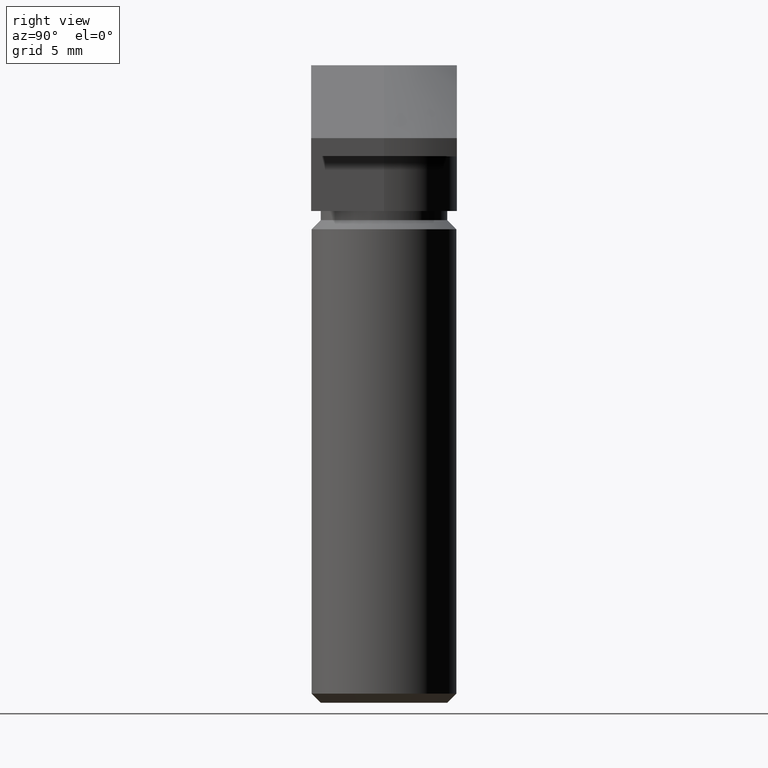
[diagram: clean part render]
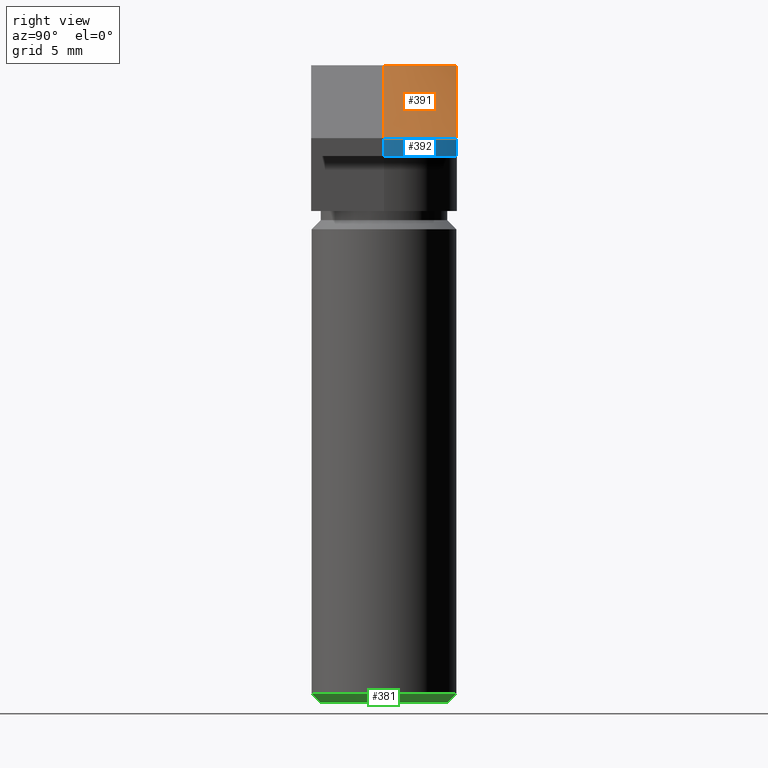
[diagram: same view with three faces highlighted in distinct colors, each labeled with its STEP entity id]
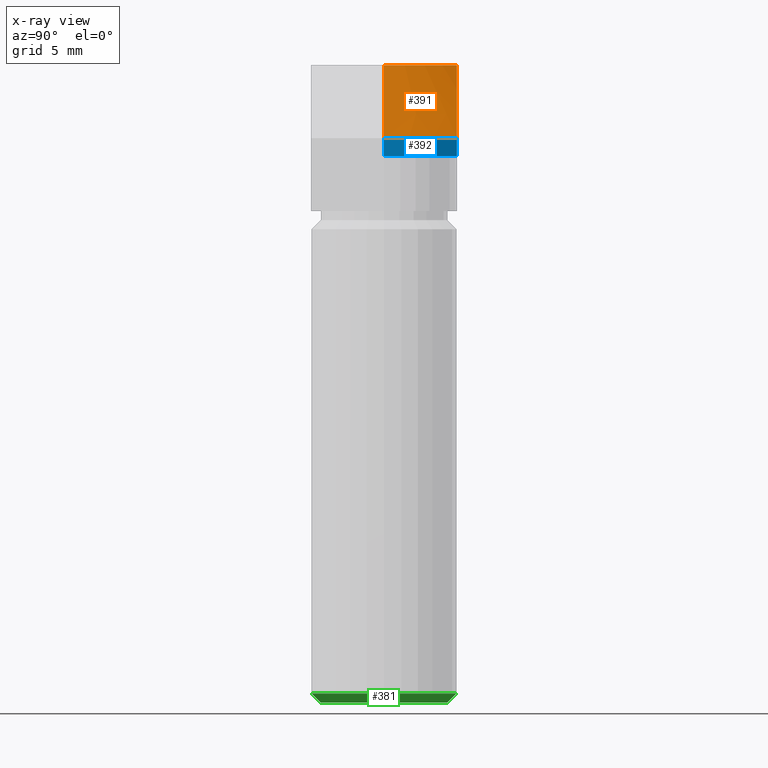
[diagram: x-ray of the same camera — body ghosted, the three highlighted faces saturated]
A machine part, right view with three faces highlighted in distinct colors.
The next image is the same camera in x-ray (body ghosted, the three faces saturated) — at least one of them is partly hidden behind the body in this view.
Their STEP definitions:

[orange] entity #391 — the highlighted conical surface has half-angle 45 deg.
#15=(
BOUNDED_CURVE()
B_SPLINE_CURVE(2,(#651,#652,#653),.UNSPECIFIED.,.F.,.F.)
B_SPLINE_CURVE_WITH_KNOTS((3,3),(0.,0.645810133031387),.UNSPECIFIED.)
CURVE()
GEOMETRIC_REPRESENTATION_ITEM()
RATIONAL_B_SPLINE_CURVE((1.,1.07257323111151,1.))
REPRESENTATION_ITEM('')
);
#49=FACE_OUTER_BOUND('',#73,.T.);
#73=EDGE_LOOP('',(#317,#318,#319,#320));
#106=LINE('',#657,#144);
#144=VECTOR('',#537,10.);
#171=CIRCLE('',#449,5.);
#172=CIRCLE('',#450,9.);
#198=VERTEX_POINT('',#649);
#199=VERTEX_POINT('',#650);
#200=VERTEX_POINT('',#654);
#201=VERTEX_POINT('',#656);
#243=EDGE_CURVE('',#198,#199,#15,.T.);
#244=EDGE_CURVE('',#200,#198,#171,.T.);
#245=EDGE_CURVE('',#200,#201,#106,.T.);
#246=EDGE_CURVE('',#201,#199,#172,.T.);
#317=ORIENTED_EDGE('',*,*,#243,.F.);
#318=ORIENTED_EDGE('',*,*,#244,.F.);
#319=ORIENTED_EDGE('',*,*,#245,.T.);
#320=ORIENTED_EDGE('',*,*,#246,.T.);
#377=CONICAL_SURFACE('',#448,7.,0.785398163397448);
#391=ADVANCED_FACE('',(#49),#377,.T.);
#448=AXIS2_PLACEMENT_3D('',#648,#533,#534);
#449=AXIS2_PLACEMENT_3D('',#655,#535,#536);
#450=AXIS2_PLACEMENT_3D('',#658,#538,#539);
#533=DIRECTION('center_axis',(0.,0.,-1.));
#534=DIRECTION('ref_axis',(1.,0.,0.));
#535=DIRECTION('center_axis',(2.04289535270664E-17,0.,1.));
#536=DIRECTION('ref_axis',(1.,0.,0.));
#537=DIRECTION('',(0.707106781186547,0.,-0.707106781186548));
#538=DIRECTION('center_axis',(2.9781283147877E-16,2.9781283147877E-16,1.));
#539=DIRECTION('ref_axis',(1.,1.2335811384724E-16,-3.08395284618099E-16));
#648=CARTESIAN_POINT('Origin',(0.,0.,-2.));
#649=CARTESIAN_POINT('',(3.,4.,0.));
#650=CARTESIAN_POINT('',(8.06225774829855,4.,-4.));
#651=CARTESIAN_POINT('Ctrl Pts',(3.,4.,-2.77555756156289E-16));
#652=CARTESIAN_POINT('Ctrl Pts',(4.80794919582092,4.,-1.08476951749255));
#653=CARTESIAN_POINT('Ctrl Pts',(8.06225774829855,4.,-4.));
#654=CARTESIAN_POINT('',(5.,0.,0.));
#655=CARTESIAN_POINT('Origin',(0.,0.,2.77555756156289E-16));
#656=CARTESIAN_POINT('',(9.,0.,-4.));
#657=CARTESIAN_POINT('',(7.,0.,-2.));
#658=CARTESIAN_POINT('Origin',(-1.11022302462516E-15,-1.11022302462516E-15,
-4.));

[blue] entity #392 — the highlighted cylindrical surface (partial cylindrical patch) has radius 9 mm, axis along (0, 0, 1).
#35=CYLINDRICAL_SURFACE('',#451,9.);
#50=FACE_OUTER_BOUND('',#74,.T.);
#74=EDGE_LOOP('',(#321,#322,#323,#324));
#107=LINE('',#660,#145);
#108=LINE('',#661,#146);
#145=VECTOR('',#542,10.);
#146=VECTOR('',#543,10.);
#170=CIRCLE('',#447,9.);
#172=CIRCLE('',#450,9.);
#195=VERTEX_POINT('',#641);
#196=VERTEX_POINT('',#643);
#199=VERTEX_POINT('',#650);
#201=VERTEX_POINT('',#656);
#240=EDGE_CURVE('',#195,#196,#170,.T.);
#246=EDGE_CURVE('',#201,#199,#172,.T.);
#247=EDGE_CURVE('',#199,#195,#107,.T.);
#248=EDGE_CURVE('',#201,#196,#108,.T.);
#321=ORIENTED_EDGE('',*,*,#247,.F.);
#322=ORIENTED_EDGE('',*,*,#246,.F.);
#323=ORIENTED_EDGE('',*,*,#248,.T.);
#324=ORIENTED_EDGE('',*,*,#240,.F.);
#392=ADVANCED_FACE('',(#50),#35,.T.);
#447=AXIS2_PLACEMENT_3D('',#644,#529,#530);
#450=AXIS2_PLACEMENT_3D('',#658,#538,#539);
#451=AXIS2_PLACEMENT_3D('',#659,#540,#541);
#529=DIRECTION('center_axis',(0.,0.,-1.));
#530=DIRECTION('ref_axis',(1.,0.,0.));
#538=DIRECTION('center_axis',(2.9781283147877E-16,2.9781283147877E-16,1.));
#539=DIRECTION('ref_axis',(1.,1.2335811384724E-16,-3.08395284618099E-16));
#540=DIRECTION('center_axis',(0.,0.,1.));
#541=DIRECTION('ref_axis',(1.,0.,0.));
#542=DIRECTION('',(0.,0.,-1.));
#543=DIRECTION('',(0.,0.,-1.));
#641=CARTESIAN_POINT('',(8.06225774829855,4.,-5.));
#643=CARTESIAN_POINT('',(9.,0.,-5.));
#644=CARTESIAN_POINT('Origin',(0.,0.,-5.));
#650=CARTESIAN_POINT('',(8.06225774829855,4.,-4.));
#656=CARTESIAN_POINT('',(9.,0.,-4.));
#658=CARTESIAN_POINT('Origin',(-1.11022302462516E-15,-1.11022302462516E-15,
-4.));
#659=CARTESIAN_POINT('Origin',(0.,0.,-4.5));
#660=CARTESIAN_POINT('',(8.06225774829855,4.,-4.5));
#661=CARTESIAN_POINT('',(9.,0.,-4.5));

[green] entity #381 — the highlighted conical surface has half-angle 45 deg.
#39=FACE_OUTER_BOUND('',#62,.T.);
#62=EDGE_LOOP('',(#273,#274,#275,#276));
#86=LINE('',#593,#124);
#124=VECTOR('',#481,3.75);
#162=CIRCLE('',#429,4.);
#163=CIRCLE('',#431,3.5);
#177=VERTEX_POINT('',#587);
#178=VERTEX_POINT('',#591);
#213=EDGE_CURVE('',#177,#177,#162,.T.);
#215=EDGE_CURVE('',#178,#178,#163,.T.);
#216=EDGE_CURVE('',#178,#177,#86,.T.);
#273=ORIENTED_EDGE('',*,*,#215,.T.);
#274=ORIENTED_EDGE('',*,*,#216,.T.);
#275=ORIENTED_EDGE('',*,*,#213,.T.);
#276=ORIENTED_EDGE('',*,*,#216,.F.);
#376=CONICAL_SURFACE('',#430,3.75,0.78539816339745);
#381=ADVANCED_FACE('',(#39),#376,.T.);
#429=AXIS2_PLACEMENT_3D('',#588,#474,#475);
#430=AXIS2_PLACEMENT_3D('',#590,#477,#478);
#431=AXIS2_PLACEMENT_3D('',#592,#479,#480);
#474=DIRECTION('center_axis',(0.,0.,-1.));
#475=DIRECTION('ref_axis',(1.,0.,0.));
#477=DIRECTION('center_axis',(0.,0.,1.));
#478=DIRECTION('ref_axis',(1.,0.,0.));
#479=DIRECTION('center_axis',(0.,0.,1.));
#480=DIRECTION('ref_axis',(1.,0.,0.));
#481=DIRECTION('',(-0.707106781186549,8.65956056235495E-17,0.707106781186546));
#587=CARTESIAN_POINT('',(-4.,4.89858719658941E-16,-34.5));
#588=CARTESIAN_POINT('Origin',(0.,0.,-34.5));
#590=CARTESIAN_POINT('Origin',(0.,0.,-34.75));
#591=CARTESIAN_POINT('',(-3.5,-4.28626379701574E-16,-35.));
#592=CARTESIAN_POINT('Origin',(0.,0.,-35.));
#593=CARTESIAN_POINT('',(-3.75,4.59242549680257E-16,-34.75));